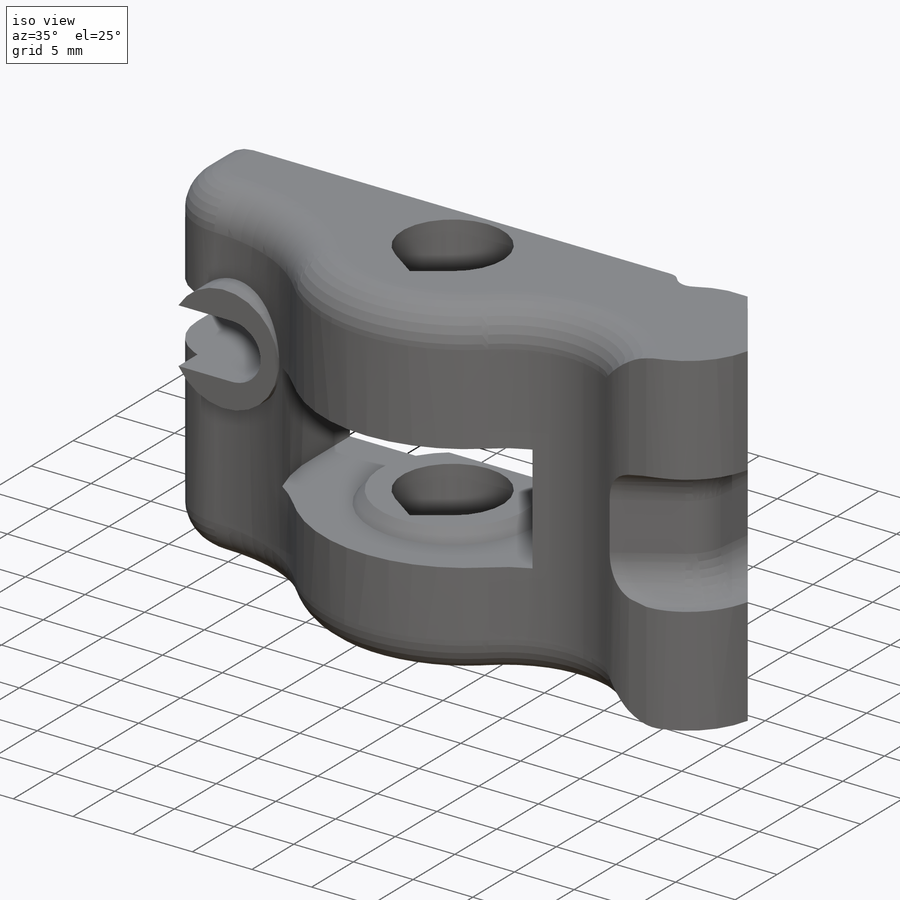
[diagram: iso view]
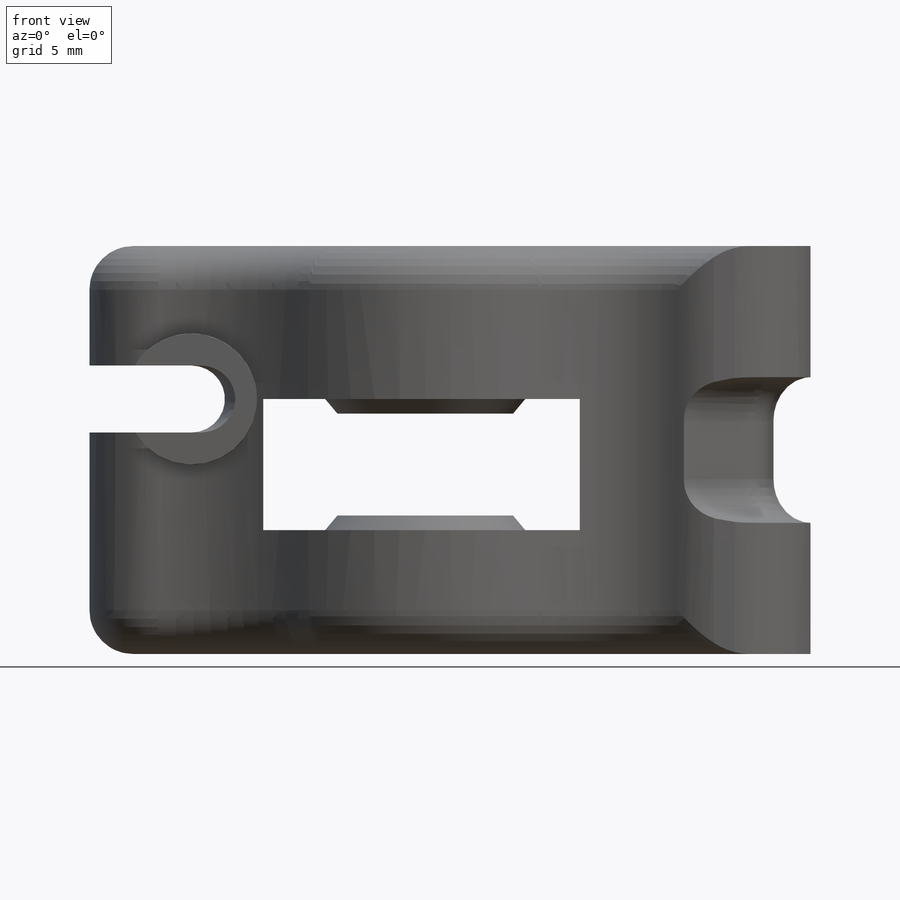
[diagram: front view]
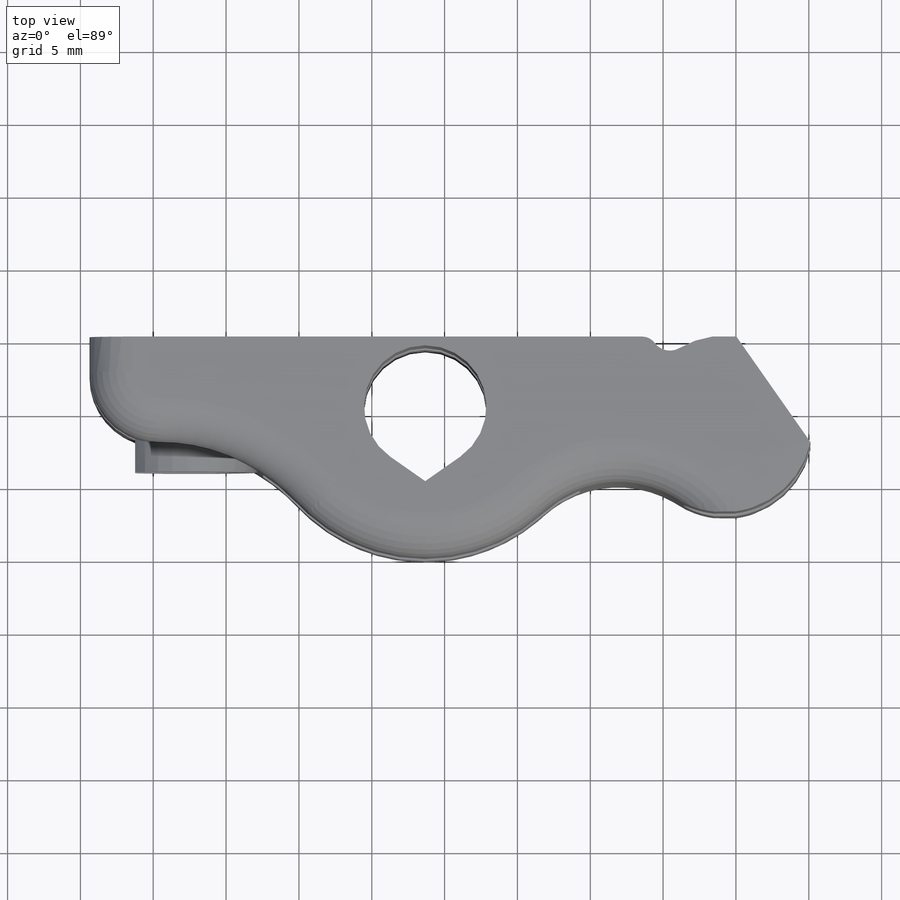
[diagram: top view]
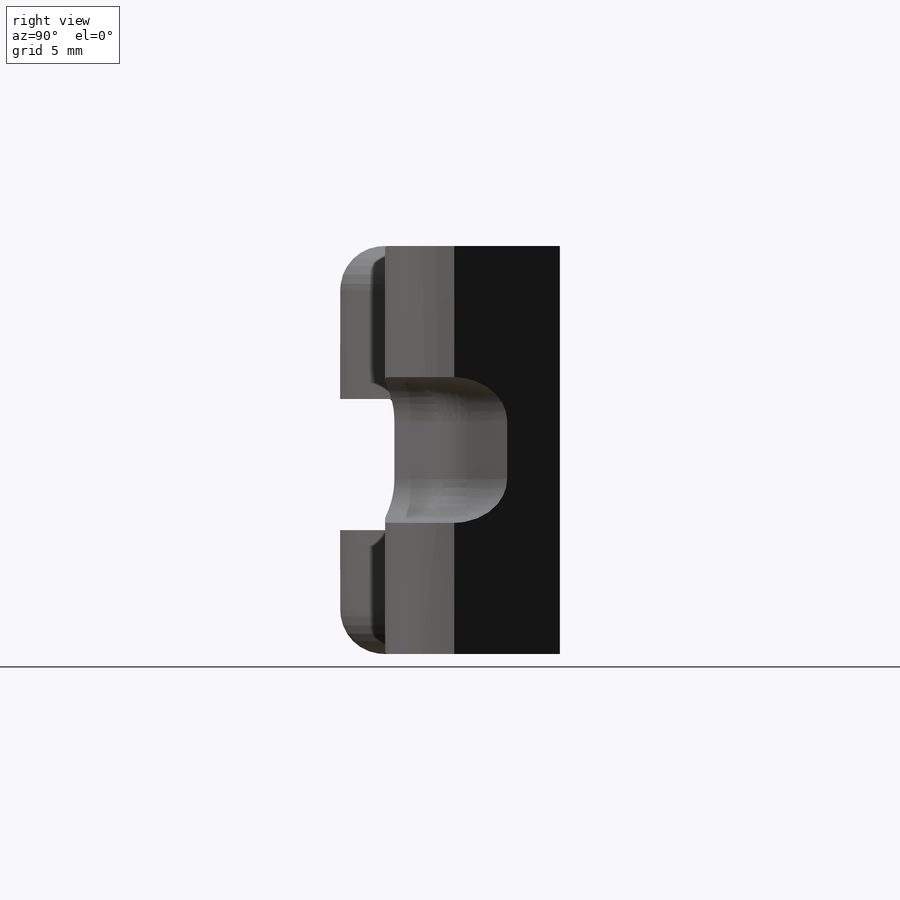
[diagram: right view]
SOLIDWORKS PART (.sldprt)
format: sldprt  version: not decoded by parser v0  size: 641,536 bytes
history: native  units: mm
features: sketch x20, cut_extrude x9, extrude x6, plane x4, sweep x2, fillet x2, material x1, chamfer x1 (+11 scaffold rows collapsed)
feature tree (56):
  scaffold x11  (default folders/planes/origin — collapsed)
  material  "Material <not specified>"
  sketch  "Sketch3"  dims[D1=0.0mm]
  extrude  "Boss-Extrude2"  Depth=12mm
  sketch  "Sketch11"
  plane  "Plane2"
  sketch  "Sketch13"  dims[c1.D1=~13.109964mm c1.D2=24.0mm c2.D1=4.8mm]
  cut_extrude  "Cut-Extrude3"  Depth=4.5mm
  sketch  "Sketch14"  dims[D2=8.4mm D1=0.0mm]
  cut_extrude  "Cut-Extrude4"  [1 undecoded]
  sketch  "Sketch16"  dims[c1.D1=8.0mm c1.D2=6.0mm c2.D1=0.0mm c2.D2=1.5mm c3.D1=6.0mm c3.D2=0.0mm c4.D1=0.3mm c4.D2=0.3mm]
  cut_extrude  "Cut-Extrude5"  [1 undecoded]
  sketch  "Sketch19"  dims[c1.D1=~13.11502mm c2.D1=50.0deg]
  cut_extrude  "Cut-Extrude6"  [1 undecoded]
  sketch  "Sketch21"  dims[D1=0.0mm]
  cut_extrude  "Cut-Extrude7"  [1 undecoded]
  sketch  "Sketch37"  dims[D1=3.0mm]
  extrude  "Boss-Extrude7"  [1 undecoded]
  sketch  "Sketch23"  dims[D1=~4.746326mm]
  cut_extrude  "Cut-Extrude8"  [1 undecoded]
  sketch  "Sketch24"
  extrude  "Boss-Extrude3"  [1 undecoded]
  sketch  "Sketch25"
  extrude  "Boss-Extrude4"  [1 undecoded]
  plane  "Plane3"
  sketch  "Sketch29"  dims[D1=~8.004716mm]
  extrude  "Boss-Extrude5"  Depth=2mm
  plane  "Plane4"  Offset=4.736042mm
  sketch  "Sketch26"  dims[D1=0.3mm]
  sketch  "Sketch27"
  sweep  "Cut-Sweep4"
  sketch  "Sketch31"  dims[D1=0.0mm]
  sketch  "Sketch32"
  sweep  "Cut-Sweep5"
  fillet  "Fillet1"  Radius=3mm
  sketch  "Sketch34"  dims[D1=1.8mm]
  extrude  "Boss-Extrude6"  [1 undecoded]
  sketch  "Sketch35"
  cut_extrude  "Cut-Extrude9"  Depth=3.5mm
  chamfer  "Chamfer1"  Distance=1.05mm Angle=40deg
  sketch  "Sketch39"  dims[c1.D1=30.8mm c2.D1=35.0deg]
  cut_extrude  "Cut-Extrude10"  [1 undecoded]
  plane  "Plane5"  Offset=14mm
  sketch  "Sketch40"  dims[D1=3.0mm]
  cut_extrude  "Cut-Extrude11"  Depth=5mm
  fillet  "Fillet2"  Radius=3mm
decode coverage: 22 of 40 modeling features carry decoded parameters
note: ~ marks probable driven/reference dimensions
note: 10 parameter values undecoded
summary: no parameter record found for 10 features
note: suppression state not decoded; provenance and decode notes live in map.json
